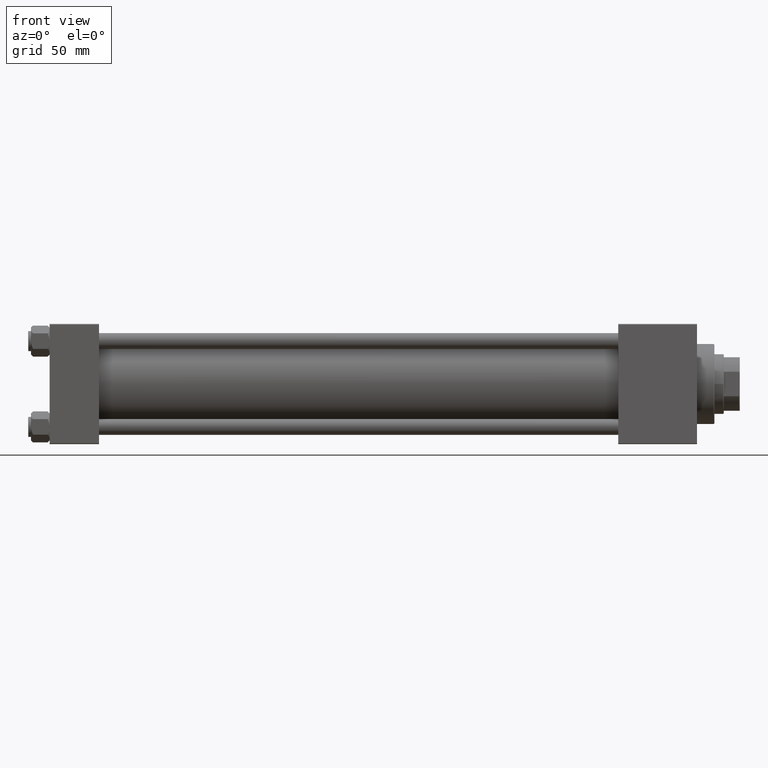
[diagram: clean part render]
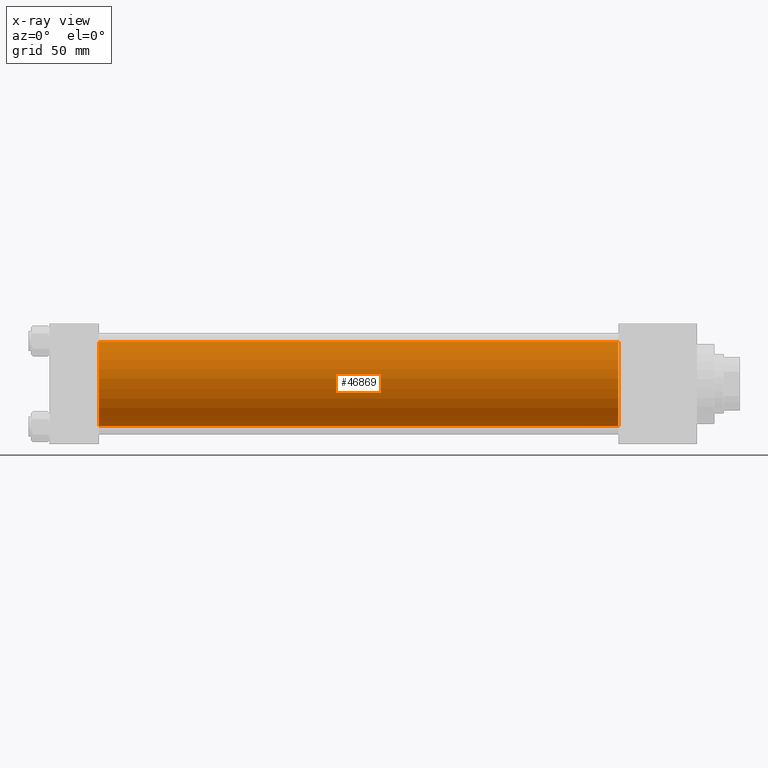
[diagram: x-ray — body ghosted, one internal face saturated and labeled with its STEP entity id]
A machine part, front view, then the same camera in x-ray: the body is ghosted and one INTERNAL B-rep face — a face not visible from any outside direction — is saturated and labeled: STEP entity #46869.
In plain terms, the highlighted cylindrical surface (partial cylindrical patch) has radius 31.5 mm, axis along (-1, -0, -0).
Its self-contained STEP definition (entity closure, byte-faithful):
#1610 = VERTEX_POINT ( 'NONE', #17200 ) ;
#2008 = DIRECTION ( 'NONE',  ( 1.000000000000000000, 0.000000000000000000, 0.000000000000000000 ) ) ;
#2160 = LINE ( 'NONE', #40319, #3205 ) ;
#2629 = CIRCLE ( 'NONE', #19688, 31.50000000000000000 ) ;
#3170 = FACE_OUTER_BOUND ( 'NONE', #16652, .T. ) ;
#3205 = VECTOR ( 'NONE', #5464, 1000.000000000000000 ) ;
#5464 = DIRECTION ( 'NONE',  ( -1.000000000000000000, -0.000000000000000000, -0.000000000000000000 ) ) ;
#6083 = CARTESIAN_POINT ( 'NONE',  ( 37.00000000000000000, -2.602085213965210642E-15, 0.000000000000000000 ) ) ;
#6497 = AXIS2_PLACEMENT_3D ( 'NONE', #30388, #26571, #42078 ) ;
#6748 = ORIENTED_EDGE ( 'NONE', *, *, #21811, .T. ) ;
#7114 = VERTEX_POINT ( 'NONE', #26581 ) ;
#10559 = CARTESIAN_POINT ( 'NONE',  ( 37.00000000000000000, -2.602085213965210642E-15, 31.50000000000000000 ) ) ;
#10672 = CARTESIAN_POINT ( 'NONE',  ( 426.0000000000000000, -2.602085213965210642E-15, 31.50000000000000000 ) ) ;
#12029 = EDGE_CURVE ( 'NONE', #38090, #7114, #49994, .T. ) ;
#12122 = LINE ( 'NONE', #46717, #40943 ) ;
#16652 = EDGE_LOOP ( 'NONE', ( #6748, #41635, #42845, #39485 ) ) ;
#17200 = CARTESIAN_POINT ( 'NONE',  ( 426.0000000000000000, 1.255552203348951850E-15, -31.50000000000000000 ) ) ;
#17523 = DIRECTION ( 'NONE',  ( 1.000000000000000000, 0.000000000000000000, 0.000000000000000000 ) ) ;
#18675 = CYLINDRICAL_SURFACE ( 'NONE', #6497, 31.50000000000000000 ) ;
#19688 = AXIS2_PLACEMENT_3D ( 'NONE', #25158, #2008, #45225 ) ;
#20468 = VERTEX_POINT ( 'NONE', #10672 ) ;
#21811 = EDGE_CURVE ( 'NONE', #20468, #1610, #2629, .T. ) ;
#22405 = AXIS2_PLACEMENT_3D ( 'NONE', #6083, #17523, #37110 ) ;
#25158 = CARTESIAN_POINT ( 'NONE',  ( 426.0000000000000000, -2.602085213965210642E-15, 0.000000000000000000 ) ) ;
#25549 = EDGE_CURVE ( 'NONE', #1610, #7114, #12122, .T. ) ;
#26571 = DIRECTION ( 'NONE',  ( -1.000000000000000000, -0.000000000000000000, -0.000000000000000000 ) ) ;
#26581 = CARTESIAN_POINT ( 'NONE',  ( 37.00000000000000000, 1.255552203348951850E-15, -31.50000000000000000 ) ) ;
#27907 = DIRECTION ( 'NONE',  ( -1.000000000000000000, -0.000000000000000000, -0.000000000000000000 ) ) ;
#30388 = CARTESIAN_POINT ( 'NONE',  ( 426.0000000000000000, -2.602085213965210642E-15, 0.000000000000000000 ) ) ;
#37110 = DIRECTION ( 'NONE',  ( 0.000000000000000000, 0.000000000000000000, -1.000000000000000000 ) ) ;
#38090 = VERTEX_POINT ( 'NONE', #10559 ) ;
#39485 = ORIENTED_EDGE ( 'NONE', *, *, #45785, .F. ) ;
#40319 = CARTESIAN_POINT ( 'NONE',  ( 426.0000000000000000, -2.602085213965210642E-15, 31.50000000000000000 ) ) ;
#40943 = VECTOR ( 'NONE', #27907, 1000.000000000000000 ) ;
#41635 = ORIENTED_EDGE ( 'NONE', *, *, #25549, .T. ) ;
#42078 = DIRECTION ( 'NONE',  ( 0.000000000000000000, 0.000000000000000000, 1.000000000000000000 ) ) ;
#42845 = ORIENTED_EDGE ( 'NONE', *, *, #12029, .F. ) ;
#45225 = DIRECTION ( 'NONE',  ( 0.000000000000000000, 0.000000000000000000, -1.000000000000000000 ) ) ;
#45785 = EDGE_CURVE ( 'NONE', #20468, #38090, #2160, .T. ) ;
#46717 = CARTESIAN_POINT ( 'NONE',  ( 426.0000000000000000, 1.255552203348951850E-15, -31.50000000000000000 ) ) ;
#46869 = ADVANCED_FACE ( 'NONE', ( #3170 ), #18675, .F. ) ;
#49994 = CIRCLE ( 'NONE', #22405, 31.50000000000000000 ) ;